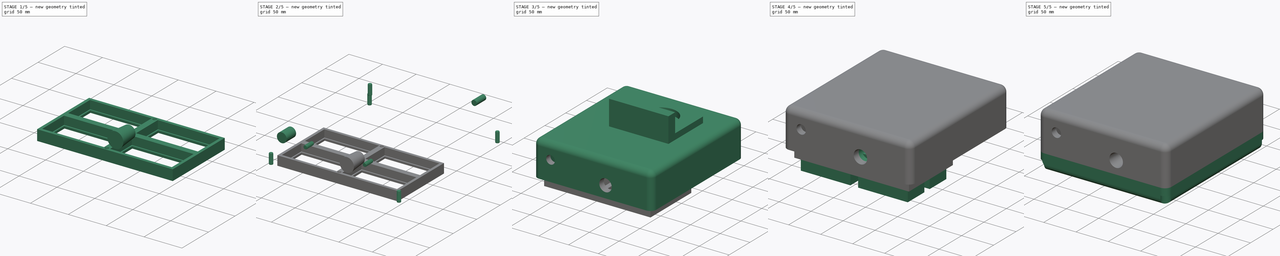
[diagram: build sequence overview — one tinted view per stage of 5, left to right]
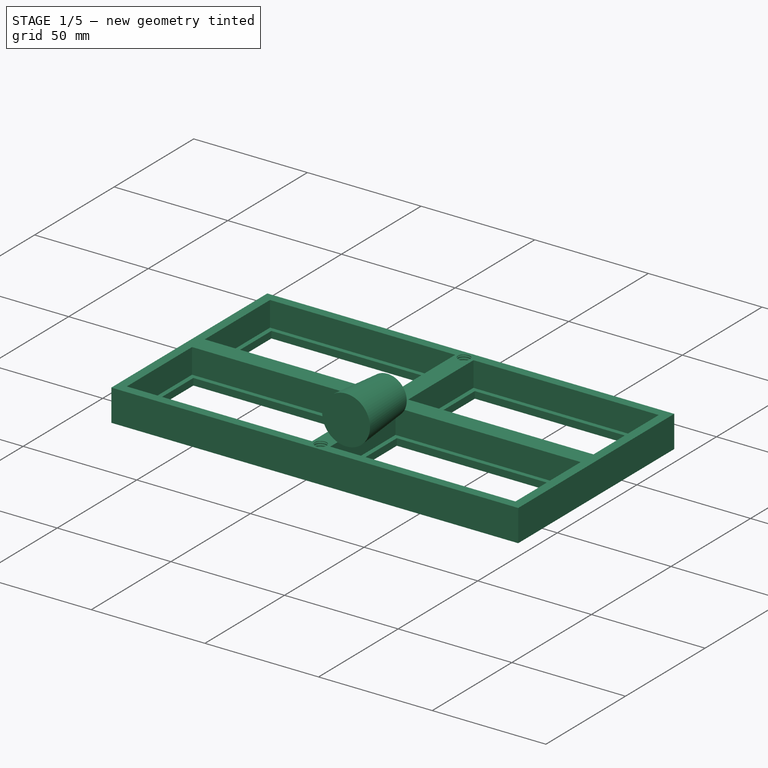
[diagram: stage 1 of 5 — iso view after this stage's code; geometry added in this stage tinted green]
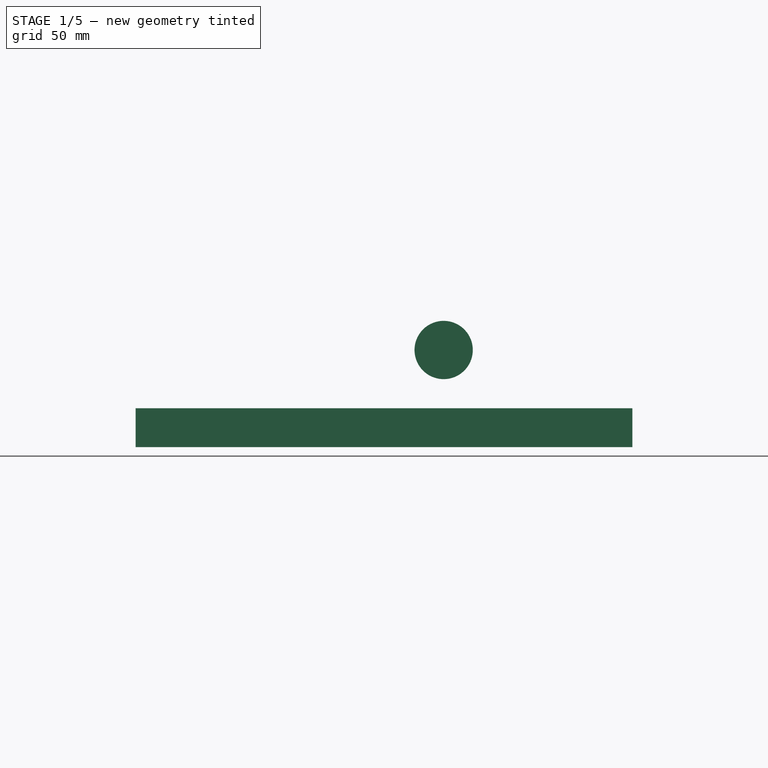
[diagram: stage 1 of 5 — front view after this stage's code; geometry added in this stage tinted green]
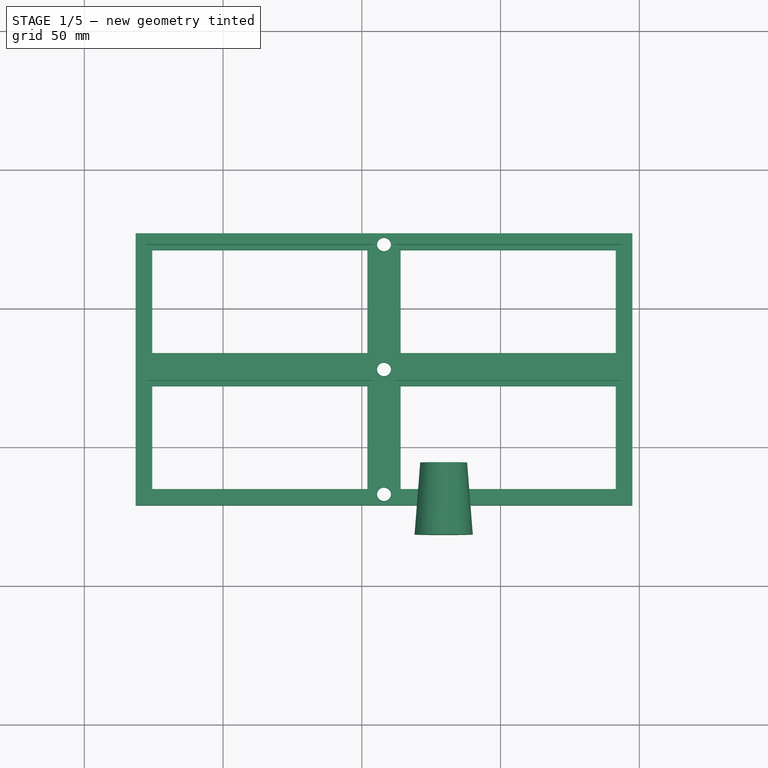
[diagram: stage 1 of 5 — top view after this stage's code; geometry added in this stage tinted green]
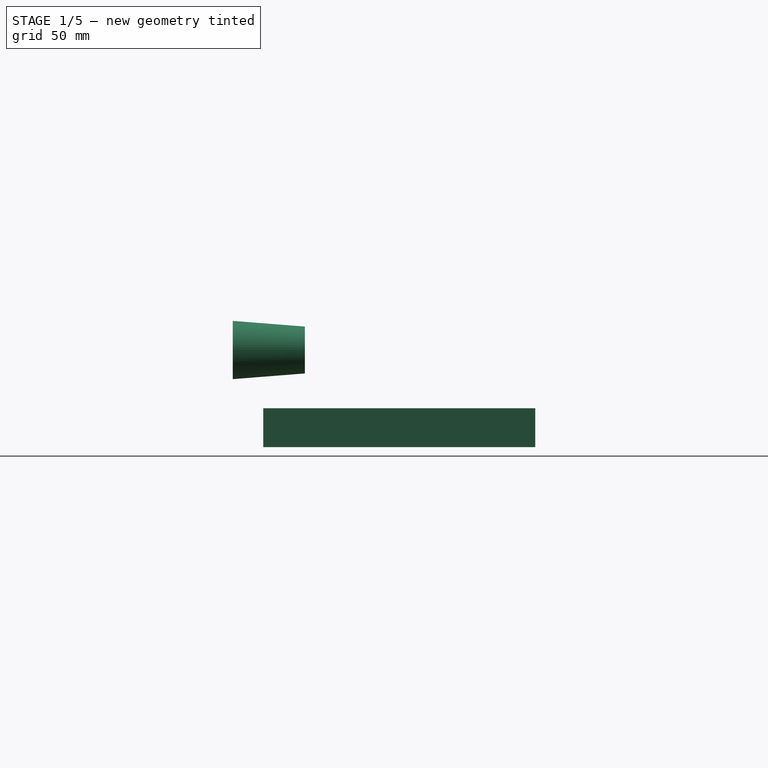
[diagram: stage 1 of 5 — right view after this stage's code; geometry added in this stage tinted green]
FCSTD DOCUMENT  (FreeCAD 0.18R4 (GitTag))
Label: Proyecto soplador tipo PAPR prov
License: CreativeCommons Attribution-ShareAlike
LicenseURL: http://creativecommons.org/licenses/by-sa/4.0/
objects: Part::Cut×14, Part::Cylinder×11, Part::FeaturePython×10, Part::Box×9, Part::MultiFuse×9, Part::Sweep×6, Sketcher::SketchObject×5, Part::Thickness×3, Part::Cone×2
note: 69 computed .brp shape members not serialized (recipe doc carries the construction recipe); baked Part::Feature solids carry a one-line shape summary decoded from their .brp

FEATURE [Sketcher::SketchObject] Sketch001
  Placement = pos=(0,0,0) rot=(1,0,0;1.5708rad)
  sketch-geometry (1):
    g0: Circle CenterX=2.5 CenterY=0.314554 CenterZ=0 NormalX=0 NormalY=0 NormalZ=1 AngleXU=0 Radius=0.3
  constraints (2):
    c: Radius(g0) = 0.3
    c: DistanceX(g-1,g0) = 2.5
FEATURE [Part::Cylinder] Cylinder009  label="Cuerpo rosca001"
  Angle = 360
  AttacherType = Attacher::AttachEngine3D
  Height = 21
  Placement = pos=(0,0,-0.1) rot=(0,0,1;0rad)
  Radius = 2.5
FEATURE [Part::Thickness] Thickness  label="Hueco HEPA"
  Intersection = false
  Join = 2
  Mode = 0
  SelfIntersection = false
  Value = 4
FEATURE [Part::Box] Box027  label="Hueco"
  AttacherType = Attacher::AttachEngine3D
  Height = 50
  Length = 77.5
  Placement = pos=(2,2,-27) rot=(0,0,1;0rad)
  Width = 37
FEATURE [Part::FeaturePython] Array005  label="Resta HEPA"  # Draft array (typed FeaturePython)
  Angle = 360
  ArrayType = 0
  Axis = (0,0,1)
  Base = -> Box027
  Center = (0,0,0)
  Fuse = false
  IntervalAxis = (0,0,0)
  IntervalX = (89.5,0,0)
  IntervalY = (0,49,0)
  IntervalZ = (0,0,1)
  NumberPolar = 1
  NumberX = 2
  NumberY = 2
  NumberZ = 1
FEATURE [Part::Box] Box028  label="Modificador altura soporte HEPA"
  AttacherType = Attacher::AttachEngine3D
  Height = 7
  Length = 150
  Placement = pos=(-20,-30,-10) rot=(0,0,1;0rad)
  Width = 100
FEATURE [Part::Cut] Cut011  label="Base HEPA sin hueco"
  Base = -> Thickness
  Refine = true
  Tool = -> Box028
FEATURE [Part::FeaturePython] Array004  label="Recipientes HEPA"  # Draft array (typed FeaturePython)
  Angle = 360
  ArrayType = 0
  Axis = (0,0,1)
  Base = -> Cut011
  Center = (0,0,0)
  Fuse = false
  IntervalAxis = (0,0,0)
  IntervalX = (89.5,0,0)
  IntervalY = (0,49,0)
  IntervalZ = (0,0,1)
  NumberPolar = 1
  NumberX = 2
  NumberY = 2
  NumberZ = 1
FEATURE [Part::Sweep] Sweep001  label="Muelle base"
  Frenet = true
  Sections = -> [Sketch001]
  Solid = true
  Transition = 1
FEATURE [Part::MultiFuse] Fusion  label="Tornillo"
  Placement = pos=(58,-17,-14) rot=(0,0,1;0rad)
  Refine = true
  Shapes = -> [Cylinder009,Sweep001]
FEATURE [Part::FeaturePython] Array006  label="Tornillos soporte HEPA"  # Draft array (typed FeaturePython)
  Angle = 360
  ArrayType = 0
  Axis = (0,0,1)
  Base = -> Fusion
  Center = (0,0,0)
  Fuse = false
  IntervalAxis = (0,0,0)
  IntervalX = (182,0,0)
  IntervalY = (0,45,0)
  IntervalZ = (0,0,1)
  NumberPolar = 1
  NumberX = 1
  NumberY = 3
  NumberZ = 1
  Placement = pos=(0,0,4) rot=(0,0,1;0rad)
FEATURE [Part::Cut] Cut  label="Soporte HEPA con huecos"
  Base = -> Array004
  Placement = pos=(-27.5,-17,-5) rot=(0,0,1;0rad)
  Refine = true
  Tool = -> Array005
FEATURE [Part::Cone] Cone001  label="Cono salida"
  Angle = 360
  AttacherType = Attacher::AttachEngine3D
  Height = 26
  Placement = pos=(79.5,-6,27) rot=(1,0,0;1.5708rad)
  Radius1 = 8.45
  Radius2 = 10.5
FEATURE [Part::Cut] Cut031  label="Soporte HEPA"
  Base = -> Cut
  Refine = true
  Tool = -> Array006
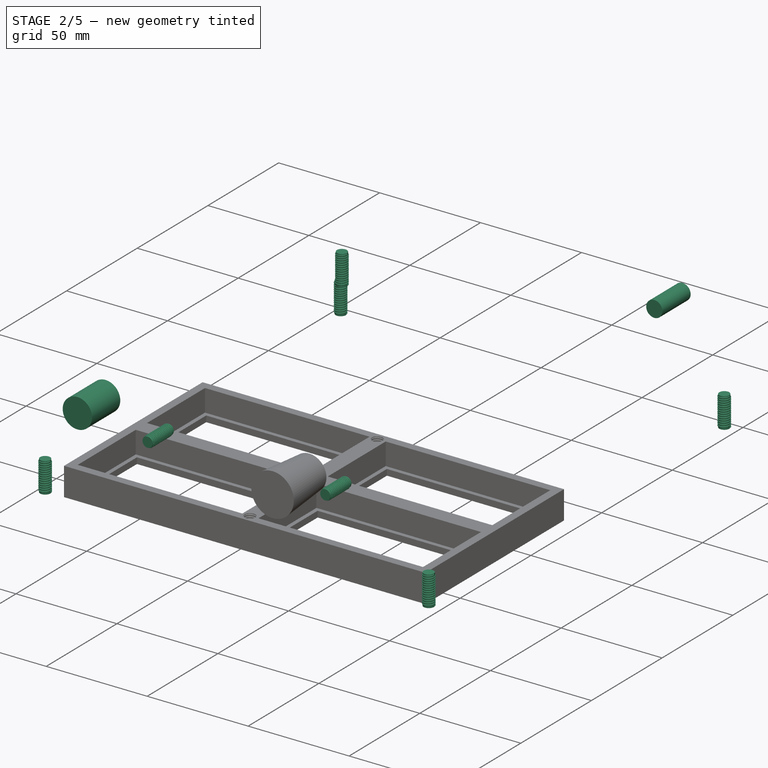
[diagram: stage 2 of 5 — iso view after this stage's code; geometry added in this stage tinted green]
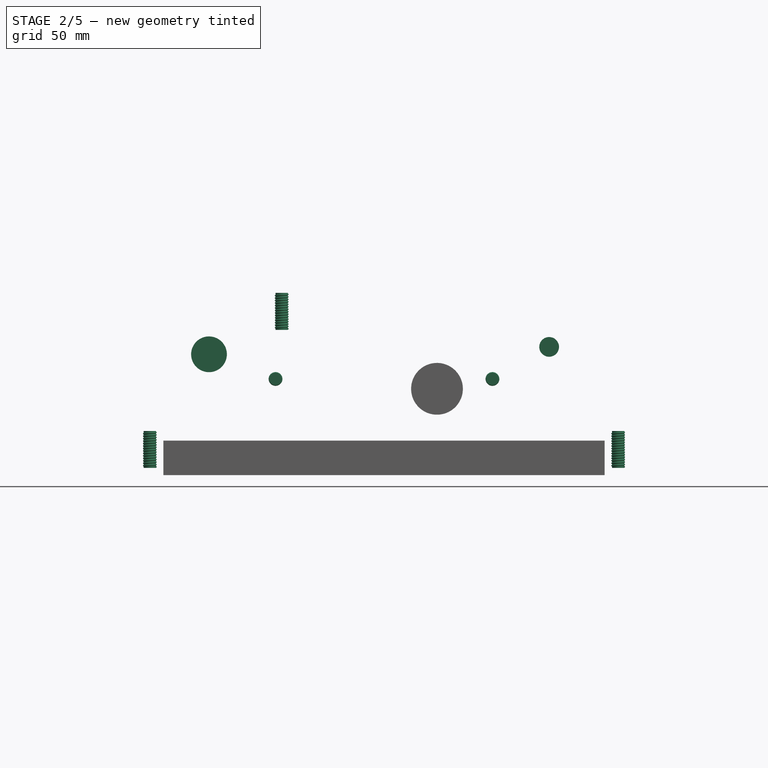
[diagram: stage 2 of 5 — front view after this stage's code; geometry added in this stage tinted green]
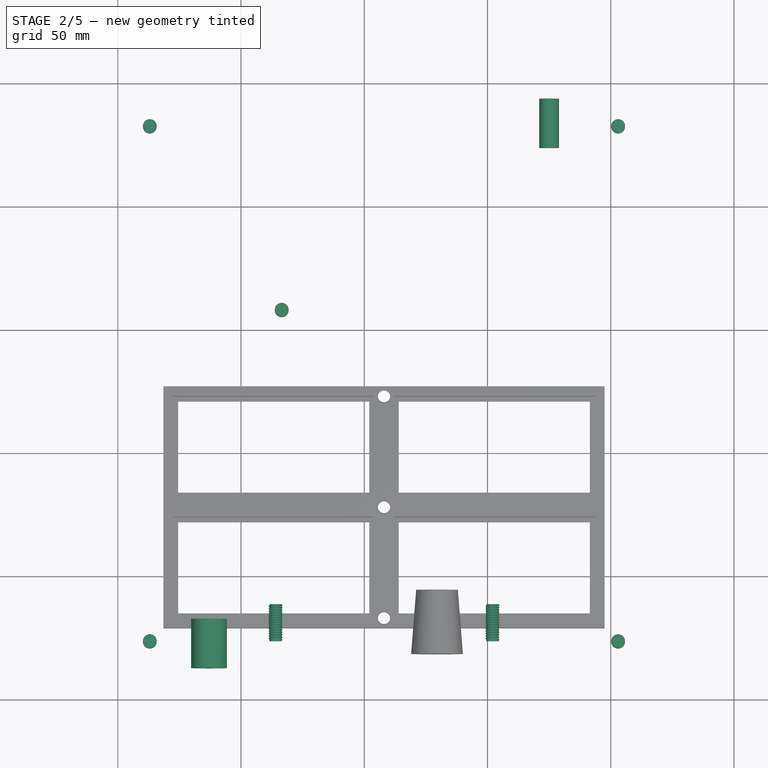
[diagram: stage 2 of 5 — top view after this stage's code; geometry added in this stage tinted green]
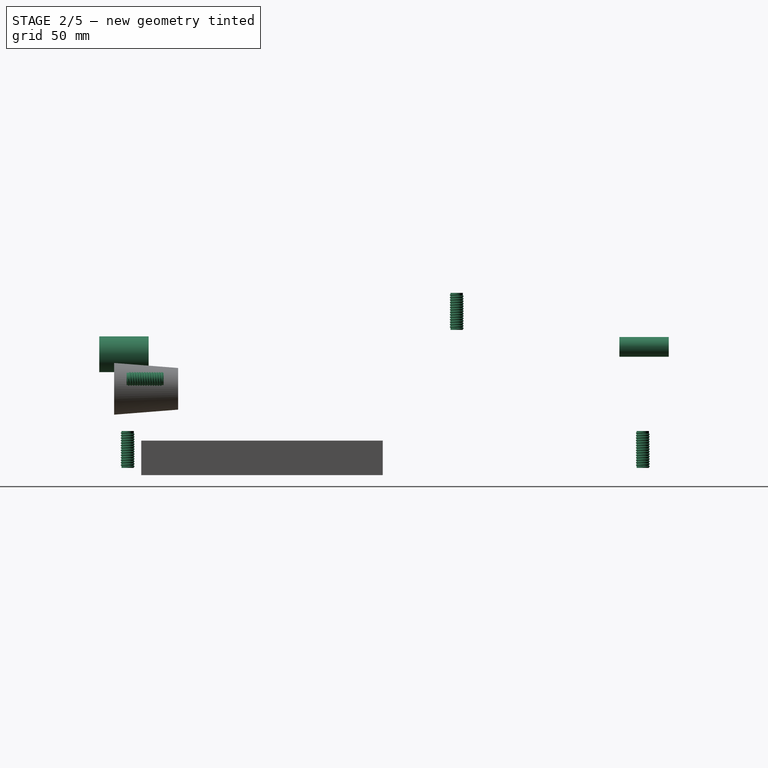
[diagram: stage 2 of 5 — right view after this stage's code; geometry added in this stage tinted green]
FEATURE [Sketcher::SketchObject] Sketch003
  Placement = pos=(0,0,0) rot=(1,0,0;1.5708rad)
  sketch-geometry (1):
    g0: Circle CenterX=2.5 CenterY=0.314554 CenterZ=0 NormalX=0 NormalY=0 NormalZ=1 AngleXU=0 Radius=0.3
  constraints (2):
    c: Radius(g0) = 0.3
    c: DistanceX(g-1,g0) = 2.5
FEATURE [Part::Sweep] Sweep003
  Frenet = true
  Sections = -> [Sketch003]
  Solid = true
  Transition = 1
FEATURE [Part::Cylinder] Cylinder014  label="Cuerpo rosca002"
  Angle = 360
  AttacherType = Attacher::AttachEngine3D
  Height = 15
  Placement = pos=(0,0,-0.1) rot=(0,0,1;0rad)
  Radius = 2.5
FEATURE [Part::MultiFuse] Fusion016  label="Rosca del controlador"
  Placement = pos=(16.5,107,51) rot=(1,0,0;0rad)
  Refine = true
  Shapes = -> [Sweep003,Cylinder014]
FEATURE [Part::Cylinder] Cylinder015  label="Hueco regulador"
  Angle = 360
  AttacherType = Attacher::AttachEngine3D
  Height = 20
  Placement = pos=(-13,-18,41) rot=(1,0,0;1.5708rad)
  Radius = 7.25
FEATURE [Part::Cylinder] Cylinder016  label="Hueco fuente"
  Angle = 360
  AttacherType = Attacher::AttachEngine3D
  Height = 20
  Placement = pos=(125,193,44) rot=(1,0,0;1.5708rad)
  Radius = 4
FEATURE [Part::Cylinder] Cylinder018  label="Cuerpo rosca003"
  Angle = 360
  AttacherType = Attacher::AttachEngine3D
  Height = 15
  Placement = pos=(0,0,-0.1) rot=(0,0,1;0rad)
  Radius = 2.5
FEATURE [Sketcher::SketchObject] Sketch004
  Placement = pos=(0,0,0) rot=(1,0,0;1.5708rad)
  sketch-geometry (1):
    g0: Circle CenterX=2.5 CenterY=0.314554 CenterZ=0 NormalX=0 NormalY=0 NormalZ=1 AngleXU=0 Radius=0.3
  constraints (2):
    c: Radius(g0) = 0.3
    c: DistanceX(g-1,g0) = 2.5
FEATURE [Part::Sweep] Sweep004
  Frenet = true
  Sections = -> [Sketch004]
  Solid = true
  Transition = 1
FEATURE [Part::MultiFuse] Fusion020  label="Rosca esquinas"
  Placement = pos=(-37,-26.5,-5) rot=(1,0,0;0rad)
  Refine = true
  Shapes = -> [Sweep004,Cylinder018]
FEATURE [Part::FeaturePython] Array011  label="Roscas esquinas"  # Draft array (typed FeaturePython)
  Angle = 360
  ArrayType = 0
  Axis = (0,0,1)
  Base = -> Fusion020
  Center = (0,0,0)
  Fuse = false
  IntervalAxis = (0,0,0)
  IntervalX = (190,0,0)
  IntervalY = (0,209,0)
  IntervalZ = (0,0,1)
  NumberPolar = 1
  NumberX = 2
  NumberY = 2
  NumberZ = 1
FEATURE [Part::Cylinder] Cylinder019  label="Cuerpo rosca004"
  Angle = 360
  AttacherType = Attacher::AttachEngine3D
  Height = 15
  Placement = pos=(0,0,-0.1) rot=(0,0,1;0rad)
  Radius = 2.5
FEATURE [Sketcher::SketchObject] Sketch005
  Placement = pos=(0,0,0) rot=(1,0,0;1.5708rad)
  sketch-geometry (1):
    g0: Circle CenterX=2.5 CenterY=0.314554 CenterZ=0 NormalX=0 NormalY=0 NormalZ=1 AngleXU=0 Radius=0.3
  constraints (2):
    c: Radius(g0) = 0.3
    c: DistanceX(g-1,g0) = 2.5
FEATURE [Part::Sweep] Sweep005
  Frenet = true
  Sections = -> [Sketch005]
  Solid = true
  Transition = 1
FEATURE [Part::MultiFuse] Fusion022  label="Rosca001"
  Placement = pos=(14,-12,31) rot=(1,0,0;1.5708rad)
  Refine = true
  Shapes = -> [Sweep005,Cylinder019]
FEATURE [Part::FeaturePython] Array013  label="Tornillos ventilador"  # Draft array (typed FeaturePython)
  Angle = 360
  ArrayType = 0
  Axis = (0,0,1)
  Base = -> Fusion022
  Center = (0,0,0)
  Fuse = false
  IntervalAxis = (0,0,0)
  IntervalX = (88,0,0)
  IntervalY = (0,1,0)
  IntervalZ = (0,0,1)
  NumberPolar = 1
  NumberX = 2
  NumberY = 1
  NumberZ = 1
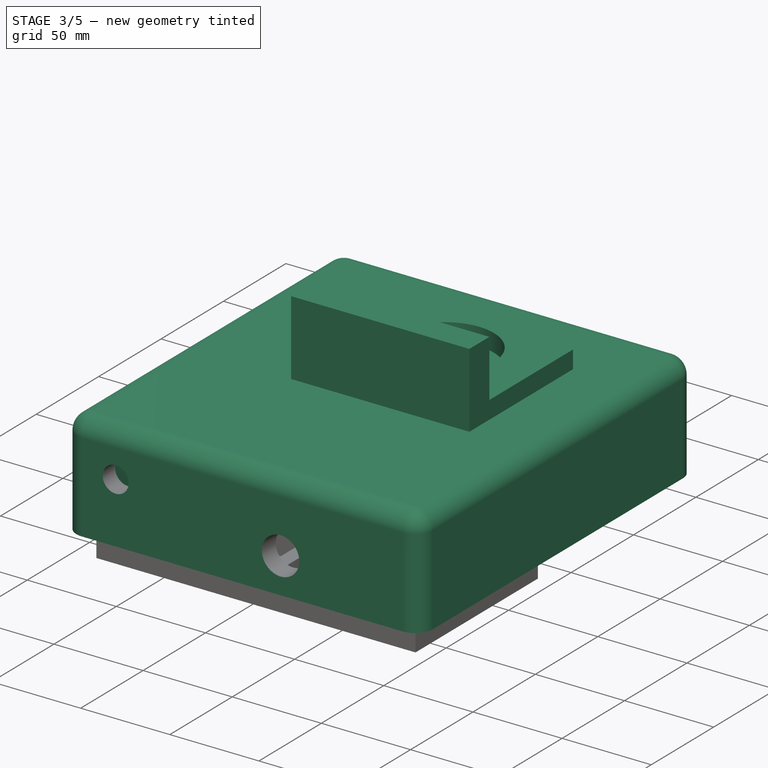
[diagram: stage 3 of 5 — iso view after this stage's code; geometry added in this stage tinted green]
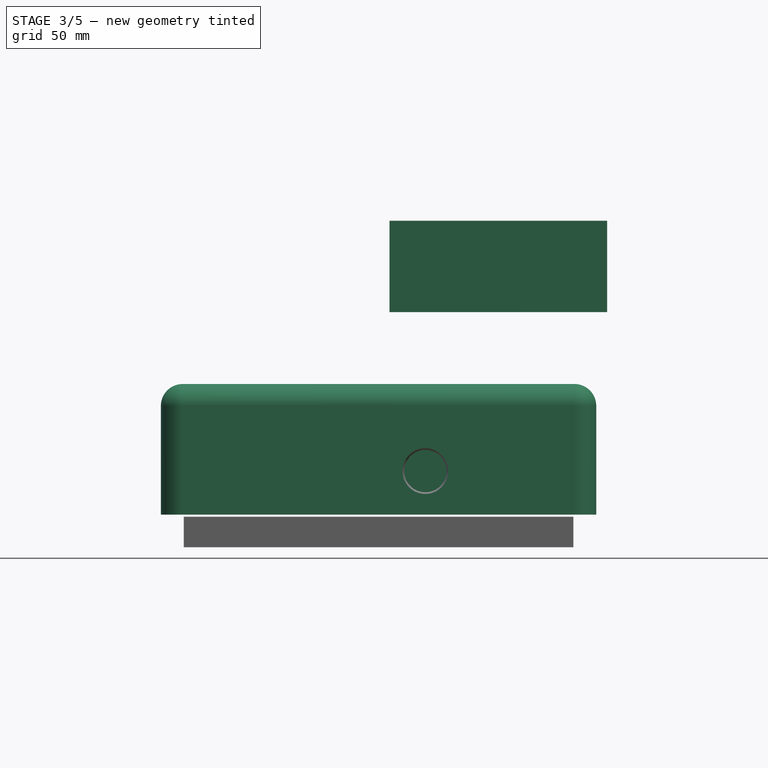
[diagram: stage 3 of 5 — front view after this stage's code; geometry added in this stage tinted green]
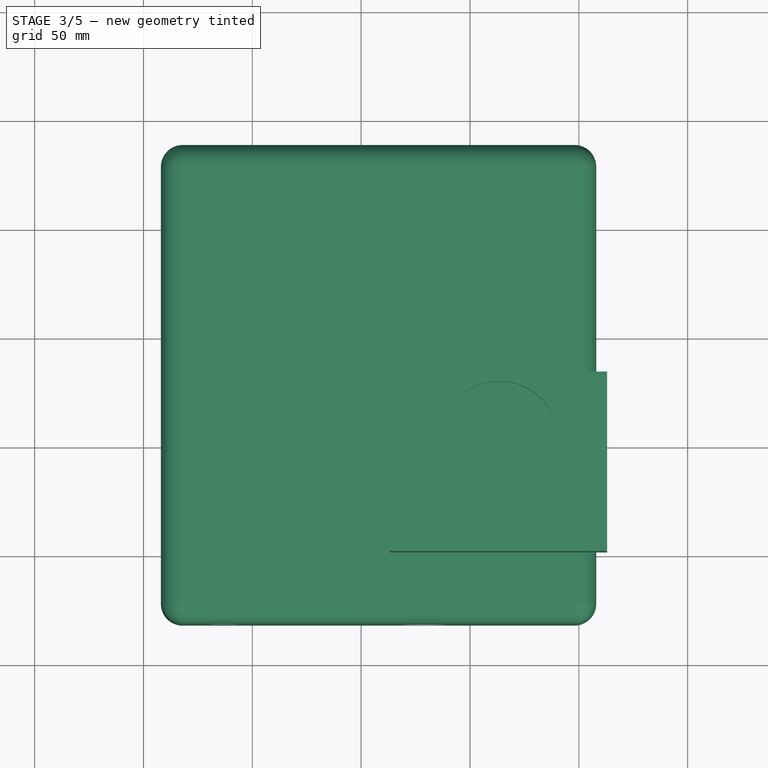
[diagram: stage 3 of 5 — top view after this stage's code; geometry added in this stage tinted green]
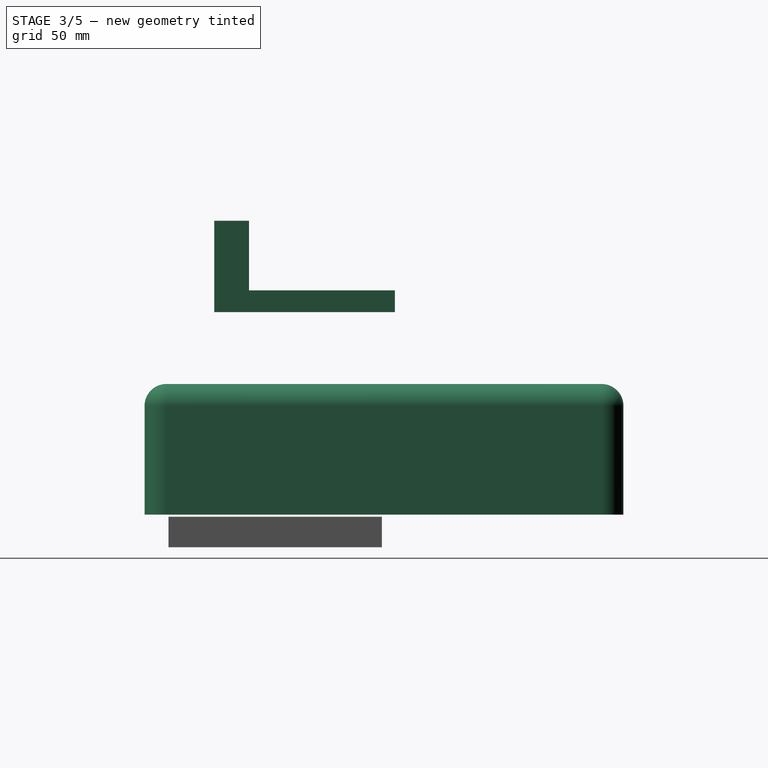
[diagram: stage 3 of 5 — right view after this stage's code; geometry added in this stage tinted green]
FEATURE [Part::Box] Box019  label="Tapa superior"
  AttacherType = Attacher::AttachEngine3D
  Height = 50
  Length = 180
  Width = 200
FEATURE [Part::Thickness] Thickness002  label="Tapa"
  Faces = -> Box019 [Face5]
  Intersection = false
  Join = 0
  Mode = 0
  Placement = pos=(-32,-22,7) rot=(0,0,1;0rad)
  SelfIntersection = false
  Value = 10
FEATURE [Part::Box] Box020  label="Soporte ventilador"
  AttacherType = Attacher::AttachEngine3D
  Height = 10
  Length = 100
  Placement = pos=(63,0,100) rot=(0,0,1;0rad)
  Width = 83
FEATURE [Part::Cylinder] Cylinder006  label="Cilindro agujero ventilador"
  Angle = 360
  AttacherType = Attacher::AttachEngine3D
  Height = 14
  Placement = pos=(113.5,51,98) rot=(0,0,1;0rad)
  Radius = 27.52
FEATURE [Part::Cut] Cut003  label="Hueco ventilador"
  Base = -> Box020
  Refine = true
  Tool = -> Cylinder006
FEATURE [Part::Box] Box021  label="Entrada agujeros ventilador"
  AttacherType = Attacher::AttachEngine3D
  Height = 32
  Length = 100
  Placement = pos=(63,0,110) rot=(0,0,1;0rad)
  Width = 16
FEATURE [Part::Cylinder] Cylinder007  label="Cylinder"
  Angle = 360
  AttacherType = Attacher::AttachEngine3D
  Height = 15
  Placement = pos=(134,38,120) rot=(1,0,0;1.5708rad)
  Radius = 8.45
FEATURE [Part::Cut] Cut004  label="Salida abertura"
  Base = -> Box021
  Refine = true
  Tool = -> Cylinder007
FEATURE [Part::FeaturePython] Array009  label="Tornillos controlador"  # Draft array (typed FeaturePython)
  Angle = 360
  ArrayType = 0
  Axis = (0,0,1)
  Base = -> Fusion016
  Center = (0,0,0)
  Fuse = false
  IntervalAxis = (0,0,0)
  IntervalX = (83,0,0)
  IntervalY = (0,35,0)
  IntervalZ = (0,0,1)
  NumberPolar = 1
  NumberX = 2
  NumberY = 2
  NumberZ = 1
  Placement = pos=(0,0,-7) rot=(0,0,1;0rad)
FEATURE [Part::MultiFuse] Fusion021  label="Soporte sin salida"
  Refine = true
  Shapes = -> [Cut003,Cut004]
FEATURE [Part::MultiFuse] Fusion023  label="Huecos tapa superior"
  Refine = true
  Shapes = -> [Cylinder016,Cylinder015,Array009,Array013,Cone001,Array011]
FEATURE [Part::Cut] Cut030  label="Tapa inferior"
  Base = -> Thickness002
  Refine = true
  Tool = -> Fusion023
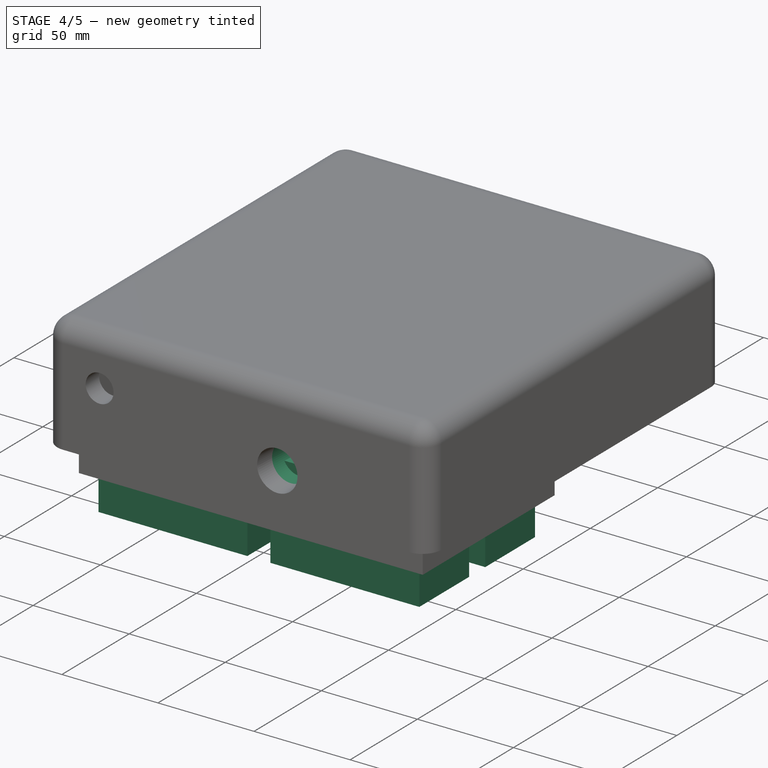
[diagram: stage 4 of 5 — iso view after this stage's code; geometry added in this stage tinted green]
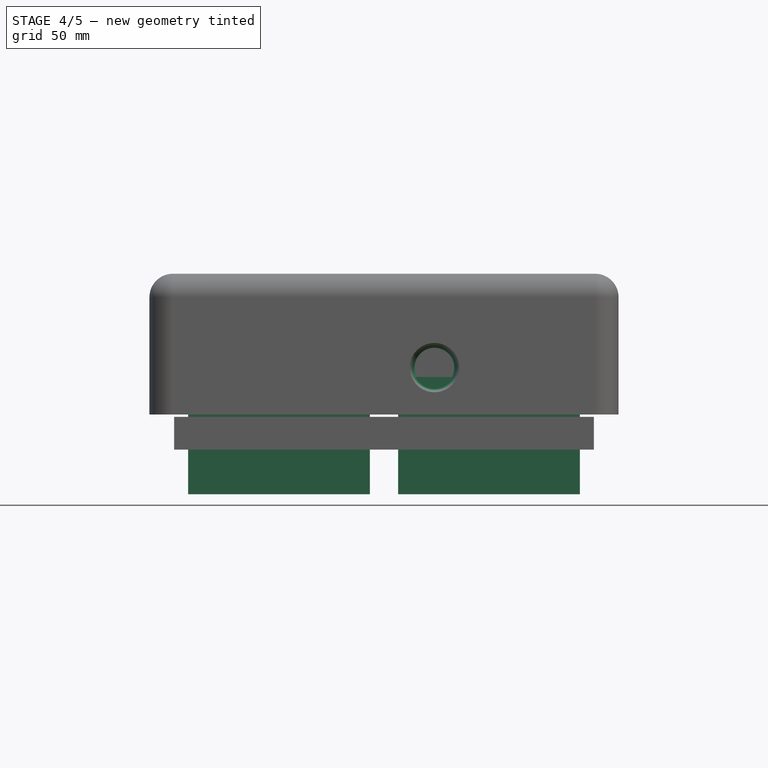
[diagram: stage 4 of 5 — front view after this stage's code; geometry added in this stage tinted green]
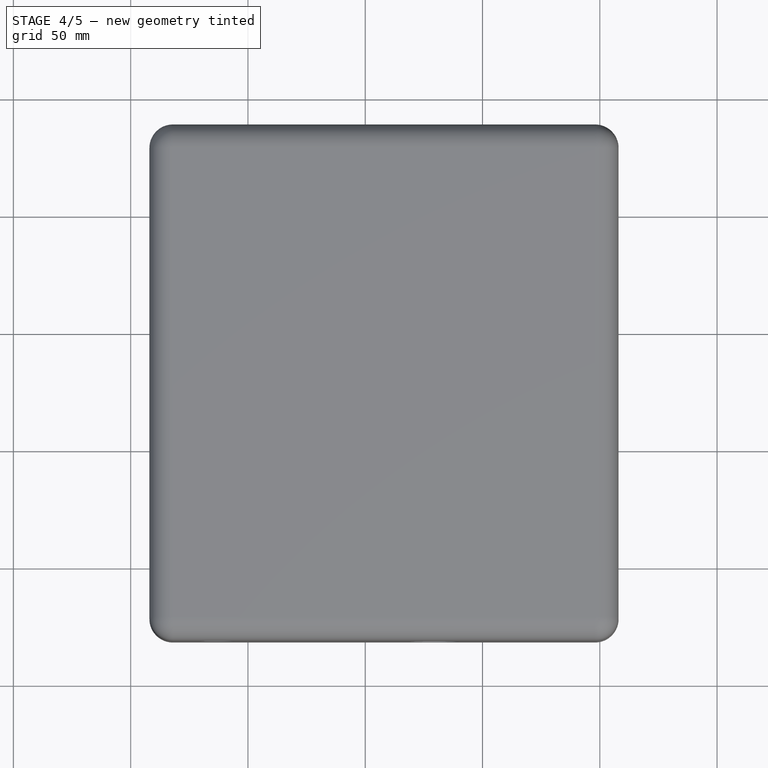
[diagram: stage 4 of 5 — top view after this stage's code; geometry added in this stage tinted green]
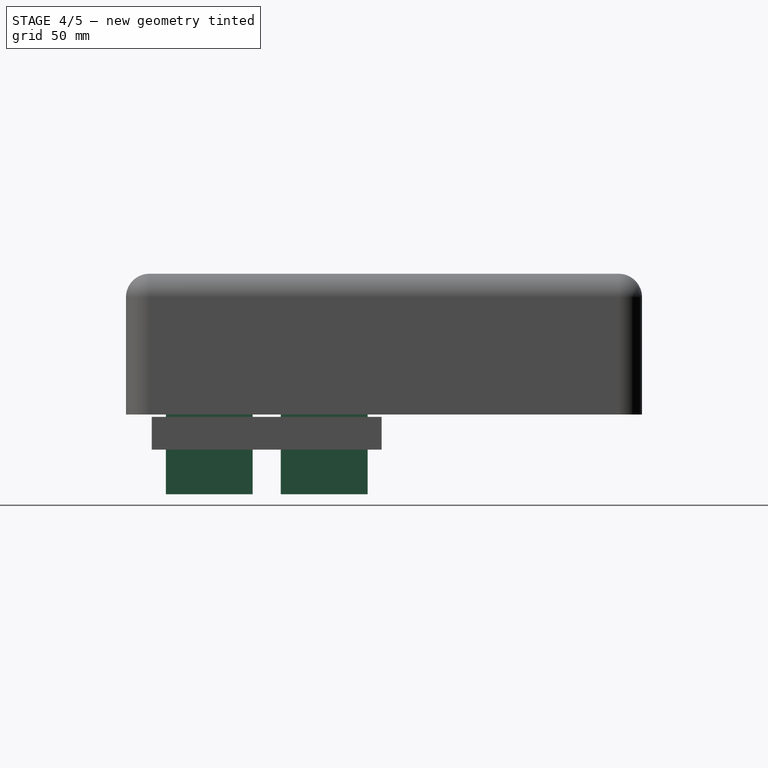
[diagram: stage 4 of 5 — right view after this stage's code; geometry added in this stage tinted green]
FEATURE [Part::Cone] Cone  label="Conducto salida"
  Angle = 360
  AttacherType = Attacher::AttachEngine3D
  Height = 26
  Placement = pos=(79.5,-6,120) rot=(1,0,0;1.5708rad)
  Radius1 = 8.45
  Radius2 = 10.5
FEATURE [Sketcher::SketchObject] Sketch
  Placement = pos=(0,0,0) rot=(1,0,0;1.5708rad)
  sketch-geometry (1):
    g0: Circle CenterX=2.5 CenterY=0.314554 CenterZ=0 NormalX=0 NormalY=0 NormalZ=1 AngleXU=0 Radius=0.3
  constraints (2):
    c: Radius(g0) = 0.3
    c: DistanceX(g-1,g0) = 2.5
FEATURE [Part::Sweep] Sweep
  Frenet = true
  Sections = -> [Sketch]
  Solid = true
  Transition = 1
FEATURE [Part::Cylinder] Cylinder008  label="Cuerpo rosca"
  Angle = 360
  AttacherType = Attacher::AttachEngine3D
  Height = 15
  Placement = pos=(0,0,-0.1) rot=(0,0,1;0rad)
  Radius = 2.5
FEATURE [Part::MultiFuse] Fusion007  label="Rosca"
  Placement = pos=(69,11,124) rot=(1,0,0;1.5708rad)
  Refine = true
  Shapes = -> [Sweep,Cylinder008]
FEATURE [Part::Box] Box029  label="Resta a soporte ventilador 1"
  AttacherType = Attacher::AttachEngine3D
  Height = 108
  Length = 15
  Placement = pos=(63,10,110) rot=(0,0,1;0rad)
  Width = 20
FEATURE [Part::Box] Box030  label="Resta a soporte ventilador 002"
  AttacherType = Attacher::AttachEngine3D
  Height = 108
  Length = 15
  Placement = pos=(148,10,110) rot=(0,0,1;0rad)
  Width = 20
FEATURE [Part::MultiFuse] Fusion015  label="Resta soporte ventilador"
  Refine = true
  Shapes = -> [Box029,Box030]
FEATURE [Part::FeaturePython] Array008  label="Tornillos soporte ventilador"  # Draft array (typed FeaturePython)
  Angle = 360
  ArrayType = 0
  Axis = (0,0,1)
  Base = -> Fusion007
  Center = (0,0,0)
  Fuse = false
  IntervalAxis = (0,0,0)
  IntervalX = (88,0,0)
  IntervalY = (0,1,0)
  IntervalZ = (0,0,1)
  NumberPolar = 1
  NumberX = 2
  NumberY = 1
  NumberZ = 1
FEATURE [Part::Box] Box031  label="Hueco001"
  AttacherType = Attacher::AttachEngine3D
  Height = 50
  Length = 77.5
  Placement = pos=(2,2,-27) rot=(0,0,1;0rad)
  Width = 37
FEATURE [Part::FeaturePython] Array012  label="Resta base"  # Draft array (typed FeaturePython)
  Angle = 360
  ArrayType = 0
  Axis = (0,0,1)
  Base = -> Box031
  Center = (0,0,0)
  Fuse = false
  IntervalAxis = (0,0,0)
  IntervalX = (89.5,0,0)
  IntervalY = (0,49,0)
  IntervalZ = (0,0,1)
  NumberPolar = 1
  NumberX = 2
  NumberY = 2
  NumberZ = 1
  Placement = pos=(-27.5,-17,0) rot=(0,0,1;0rad)
FEATURE [Part::Cut] Cut027  label="Soporte con bordes cortados"
  Base = -> Fusion021
  Refine = true
  Tool = -> Fusion015
FEATURE [Part::Cut] Cut028  label="Soporte con tornillos"
  Base = -> Cut027
  Placement = pos=(-55,-22,0) rot=(0,0,1;0rad)
  Refine = true
  Tool = -> Array008
FEATURE [Part::Cut] Cut029  label="Soporte ventilador001"
  Base = -> Cut028
  Placement = pos=(0,0,-93) rot=(0,0,1;0rad)
  Refine = true
  Tool = -> Cone
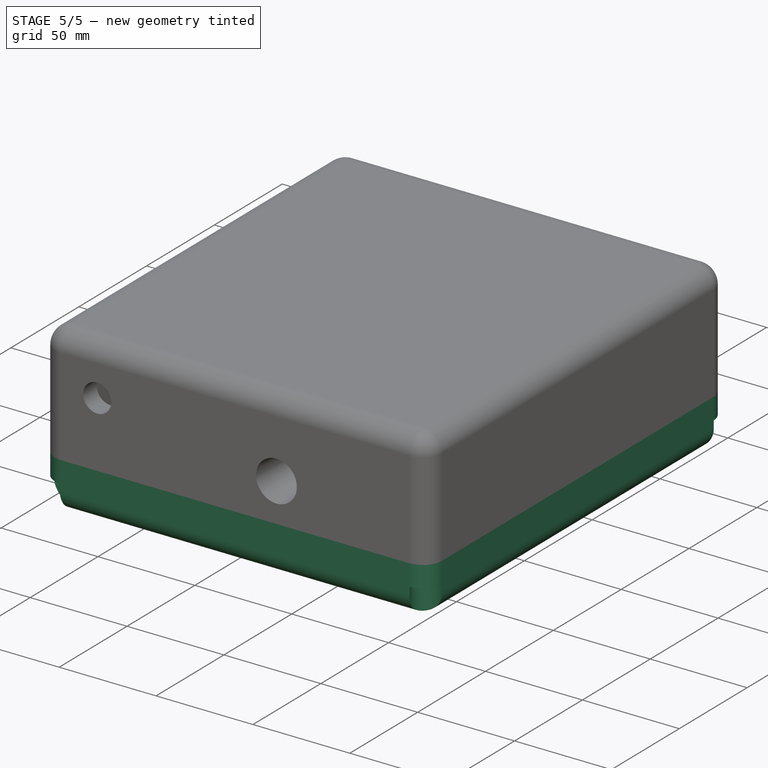
[diagram: stage 5 of 5 — iso view after this stage's code; geometry added in this stage tinted green]
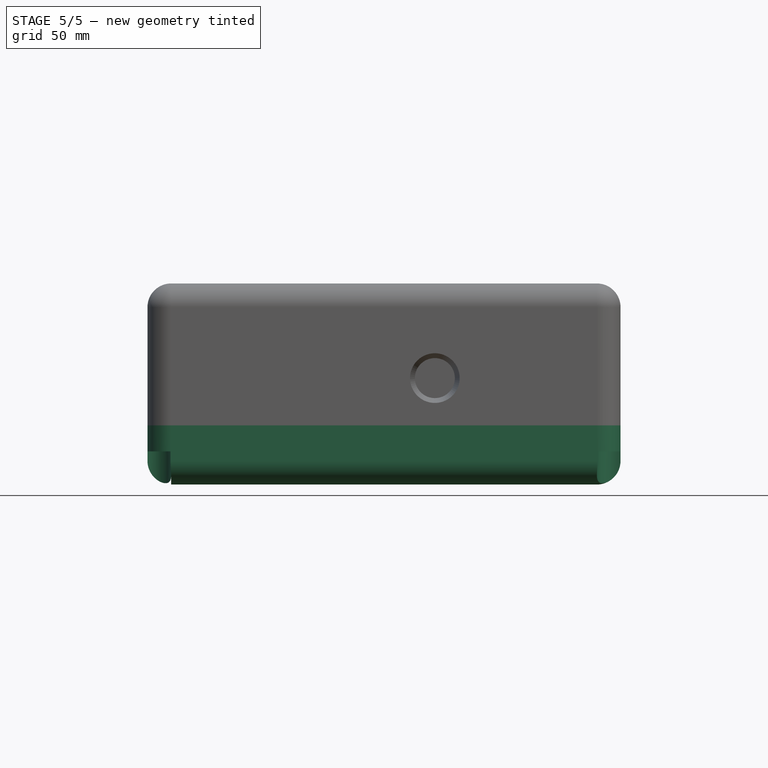
[diagram: stage 5 of 5 — front view after this stage's code; geometry added in this stage tinted green]
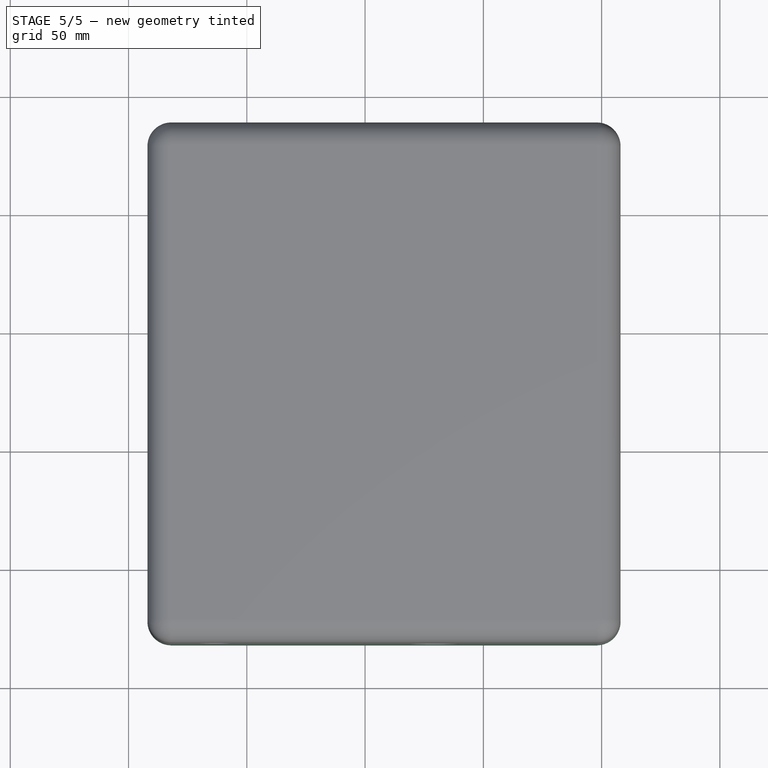
[diagram: stage 5 of 5 — top view after this stage's code; geometry added in this stage tinted green]
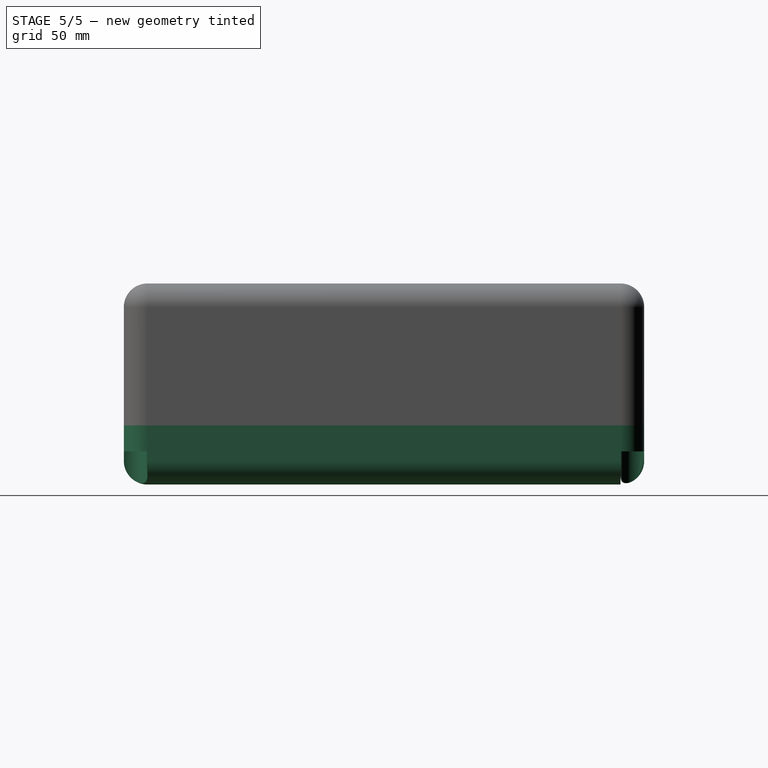
[diagram: stage 5 of 5 — right view after this stage's code; geometry added in this stage tinted green]
FEATURE [Part::Box] Box017  label="Cube001"
  AttacherType = Attacher::AttachEngine3D
  Height = 15
  Length = 180
  Placement = pos=(-32,-22,-8) rot=(0,0,1;0rad)
  Width = 200
FEATURE [Part::Thickness] Thickness001  label="Base"
  Faces = -> Box017 [Face6]
  Intersection = false
  Join = 0
  Mode = 0
  SelfIntersection = false
  Value = 10
FEATURE [Part::Sweep] Sweep002
  Frenet = true
  Solid = true
  Transition = 1
FEATURE [Part::Cylinder] Cylinder013  label="Cuerpo tornillo pilas"
  Angle = 360
  AttacherType = Attacher::AttachEngine3D
  Height = 15
  Placement = pos=(0,0,-0.5) rot=(0,0,1;0rad)
  Radius = 1.5
FEATURE [Part::MultiFuse] Fusion014  label="Tornillo pilas"
  Placement = pos=(13,127,-16) rot=(0,0,1;0rad)
  Refine = true
  Shapes = -> [Sweep002,Cylinder013]
FEATURE [Part::FeaturePython] Array007  label="Tornillos pilas"  # Draft array (typed FeaturePython)
  Angle = 360
  ArrayType = 0
  Axis = (0,0,1)
  Base = -> Fusion014
  Center = (0,0,0)
  Fuse = false
  IntervalAxis = (0,0,0)
  IntervalX = (18,0,0)
  IntervalY = (0,0,0)
  IntervalZ = (0,0,1)
  NumberPolar = 1
  NumberX = 6
  NumberY = 1
  NumberZ = 1
  Placement = pos=(0,0,7) rot=(0,0,1;0rad)
FEATURE [Part::Cylinder] Cylinder017  label="Cilindro hueco esquinas"
  Angle = 360
  AttacherType = Attacher::AttachEngine3D
  Height = 30
  Placement = pos=(-40,-30,-28) rot=(0,0,1;0rad)
  Radius = 8
FEATURE [Part::FeaturePython] Array010  label="Cilindros huecos esquinas"  # Draft array (typed FeaturePython)
  Angle = 360
  ArrayType = 0
  Axis = (0,0,1)
  Base = -> Cylinder017
  Center = (0,0,0)
  Fuse = false
  IntervalAxis = (0,0,0)
  IntervalX = (196,0,0)
  IntervalY = (0,216,0)
  IntervalZ = (0,0,1)
  NumberPolar = 1
  NumberX = 2
  NumberY = 2
  NumberZ = 1
  Placement = pos=(0,0,-6) rot=(0,0,1;0rad)
FEATURE [Part::Cut] Cut021  label="Base con huecos"
  Base = -> Thickness001
  Refine = true
  Tool = -> Array012
FEATURE [Part::Cut] Cut023  label="Base con tornillos HEPA"
  Base = -> Cut021
  Refine = true
  Tool = -> Array006
FEATURE [Part::Cut] Cut024  label="Base con tornillos pilas"
  Base = -> Cut023
  Refine = true
  Tool = -> Array007
FEATURE [Part::Cut] Cut025  label="Base sin esquinas"
  Base = -> Cut024
  Refine = true
  Tool = -> Array010
FEATURE [Part::Cut] Cut026  label="Tapa superior."
  Base = -> Cut025
  Refine = true
  Tool = -> Array011
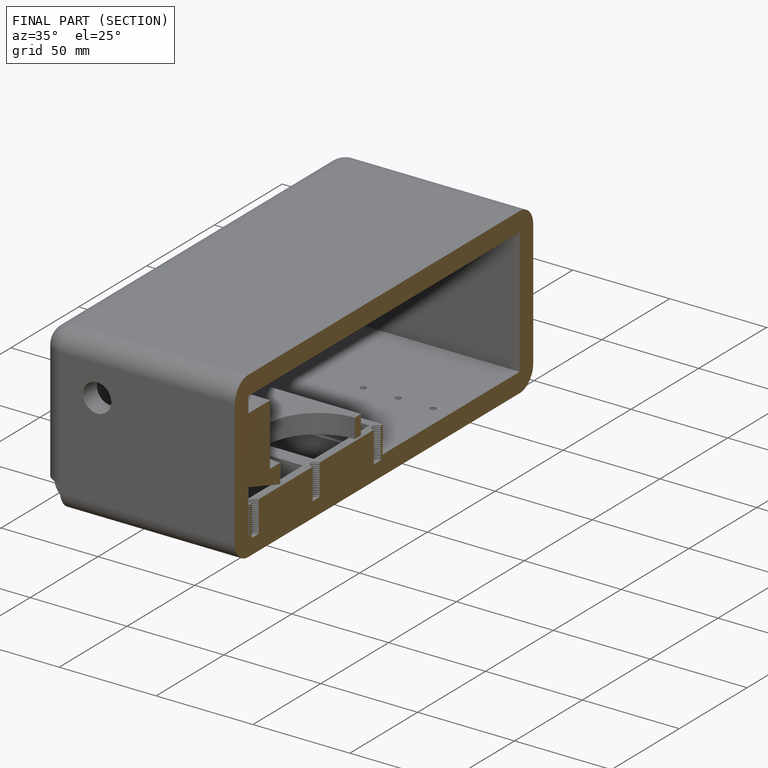
[diagram: finished part — half-section view (interior)]
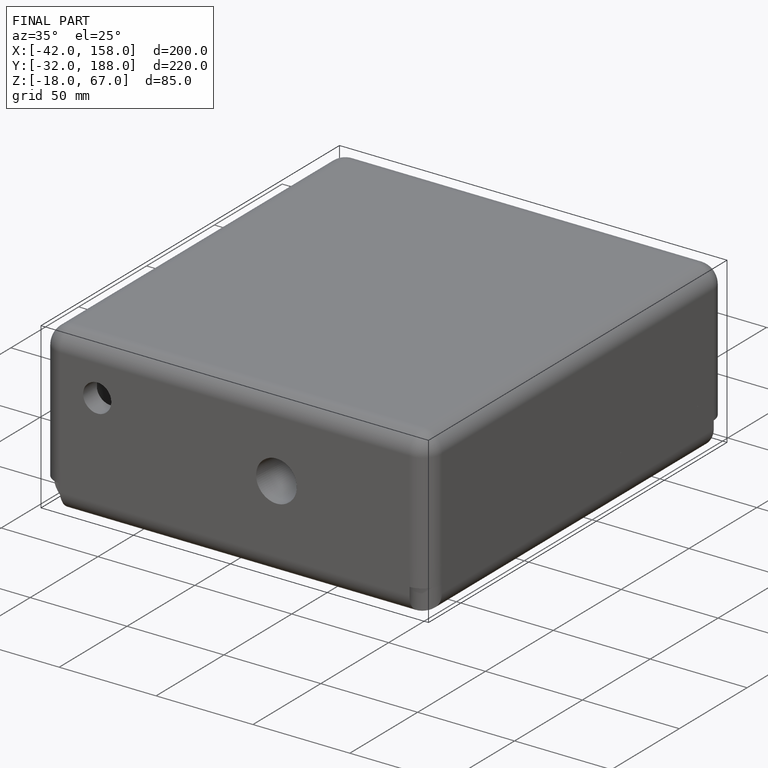
[diagram: finished part — iso view with bounding-box wireframe]
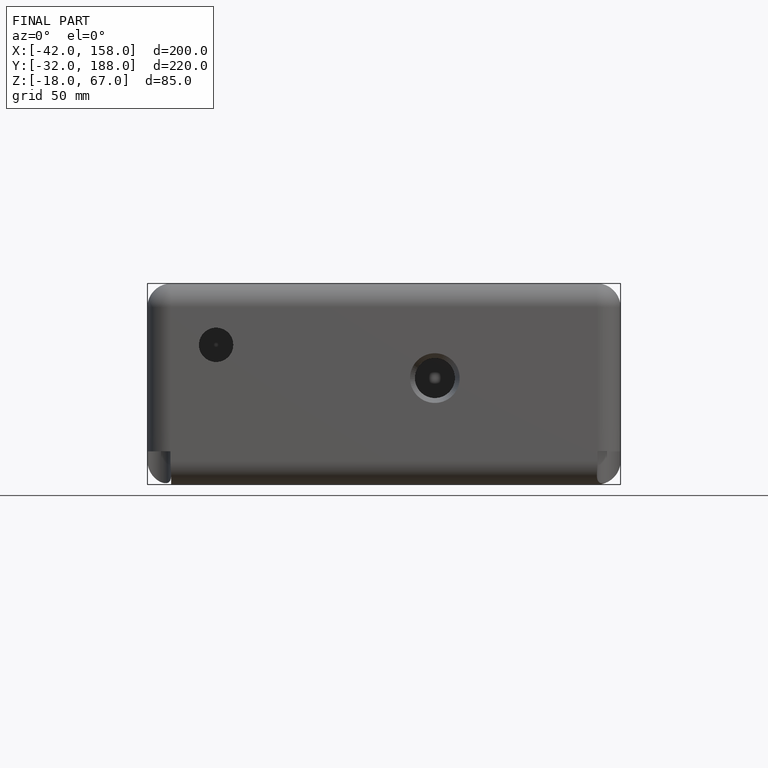
[diagram: finished part — front view with bounding-box wireframe]
